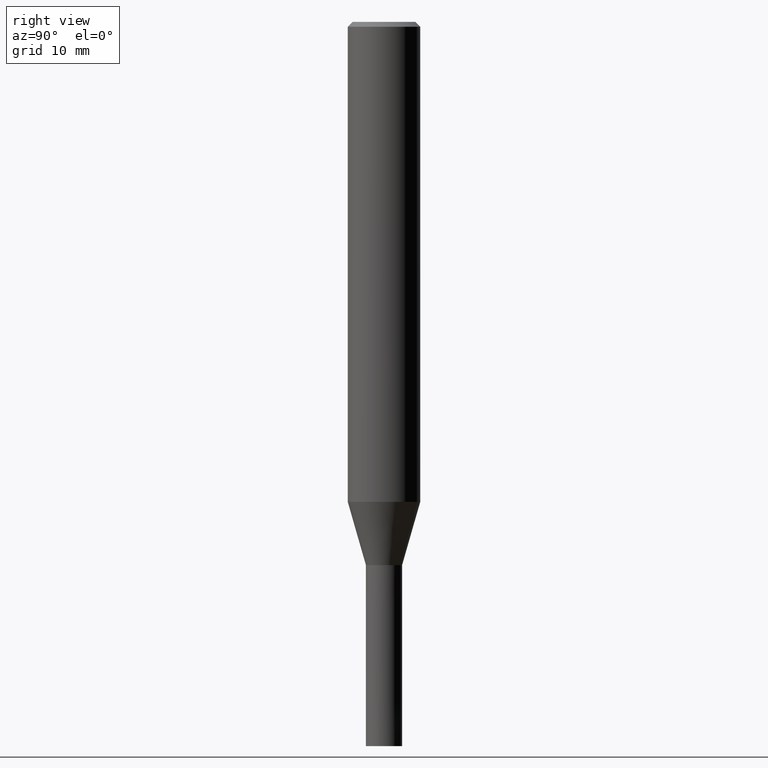
[diagram: clean part render]
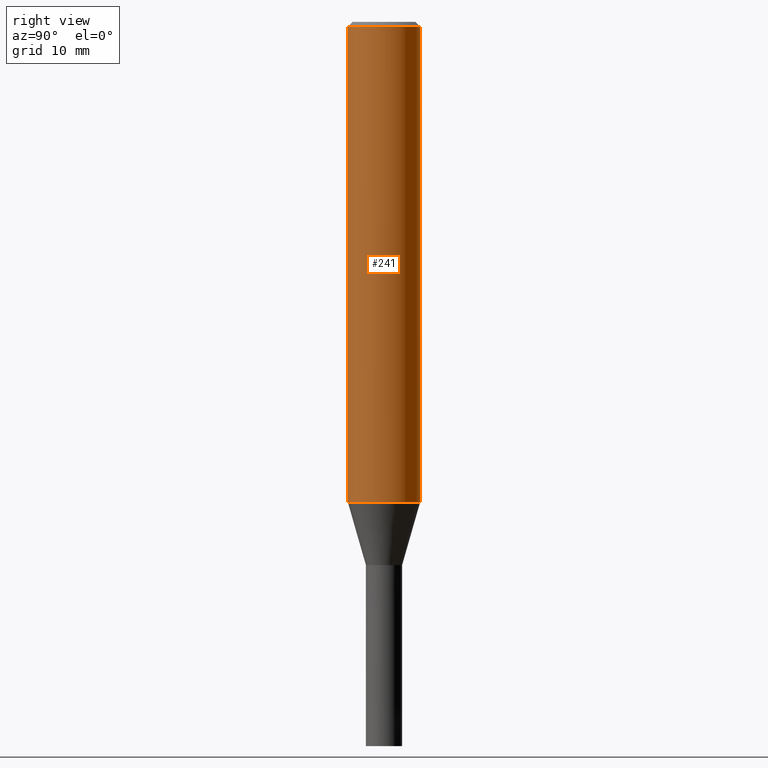
[diagram: same view with one face highlighted and labeled with its STEP entity id]
A machine part, right view. The second image highlights one B-rep face of the part: STEP entity #241.
In plain terms, the highlighted cylindrical surface (edge-blend (fillet) strip) has radius 3 mm, axis along (-0, -0, 1).
Its self-contained STEP definition (entity closure, byte-faithful):
#115=VERTEX_POINT('',#286);
#139=VERTEX_POINT('',#312);
#153=EDGE_CURVE('',#247,#139,#330,.T.);
#173=EDGE_CURVE('',#251,#247,#351,.T.);
#233=EDGE_CURVE('',#251,#115,#417,.T.);
#241=ADVANCED_FACE('',(#428),#429,.T.);
#245=EDGE_CURVE('',#139,#115,#433,.T.);
#247=VERTEX_POINT('',#435);
#251=VERTEX_POINT('',#441);
#286=CARTESIAN_POINT('',(3.67381906146713E-016,-3.0,-0.399999999999999));
#312=CARTESIAN_POINT('',(3.67381906146713E-016,-3.0,-39.769));
#330=CIRCLE('',#529,3.0);
#351=LINE('',#558,#559);
#417=CIRCLE('',#642,3.0);
#428=FACE_OUTER_BOUND('',#654,.T.);
#429=CYLINDRICAL_SURFACE('',#655,3.0);
#433=LINE('',#659,#660);
#435=CARTESIAN_POINT('',(0.0,3.0,-39.769));
#441=CARTESIAN_POINT('',(0.0,3.0,-0.399999999999999));
#529=AXIS2_PLACEMENT_3D('',#750,#751,#752);
#558=CARTESIAN_POINT('',(-3.67381906146713E-016,3.0,-20.0845));
#559=VECTOR('',#767,1.0);
#642=AXIS2_PLACEMENT_3D('',#843,#844,#845);
#654=EDGE_LOOP('',(#866,#867,#868,#869));
#655=AXIS2_PLACEMENT_3D('',#870,#871,#872);
#659=CARTESIAN_POINT('',(3.67381906146713E-016,-3.0,-20.0845));
#660=VECTOR('',#874,1.0);
#750=CARTESIAN_POINT('',(0.0,0.0,-39.769));
#751=DIRECTION('',(0.0,0.0,-1.0));
#752=DIRECTION('',(0.0,1.0,0.0));
#767=DIRECTION('',(0.0,0.0,-1.0));
#843=CARTESIAN_POINT('',(0.0,0.0,-0.399999999999999));
#844=DIRECTION('',(0.0,0.0,-1.0));
#845=DIRECTION('',(0.0,1.0,0.0));
#866=ORIENTED_EDGE('',*,*,#173,.F.);
#867=ORIENTED_EDGE('',*,*,#233,.T.);
#868=ORIENTED_EDGE('',*,*,#245,.F.);
#869=ORIENTED_EDGE('',*,*,#153,.F.);
#870=CARTESIAN_POINT('',(0.0,0.0,-20.0845));
#871=DIRECTION('',(-0.0,-0.0,1.0));
#872=DIRECTION('',(0.0,1.0,0.0));
#874=DIRECTION('',(-0.0,-0.0,1.0));